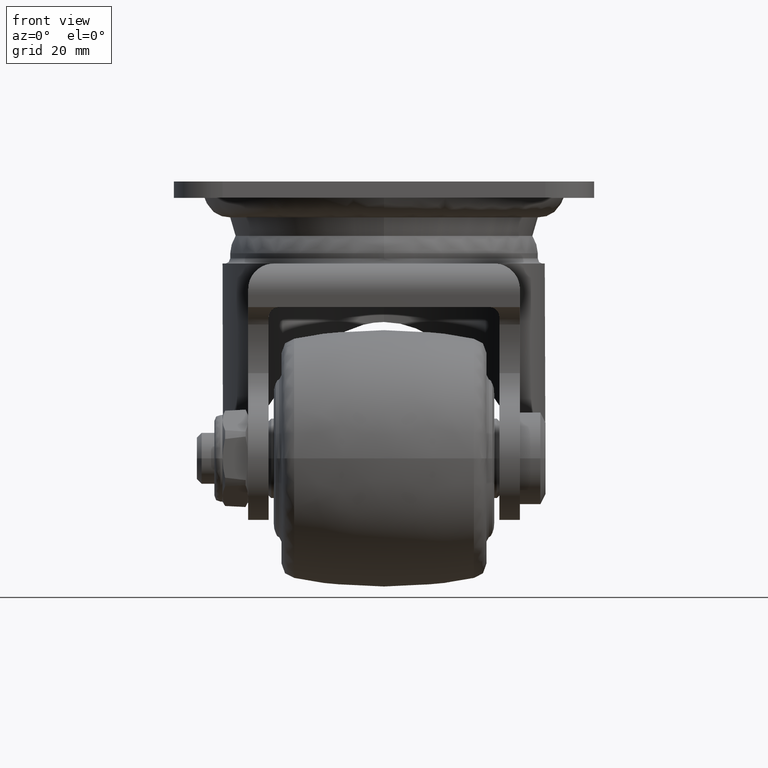
[diagram: clean part render]
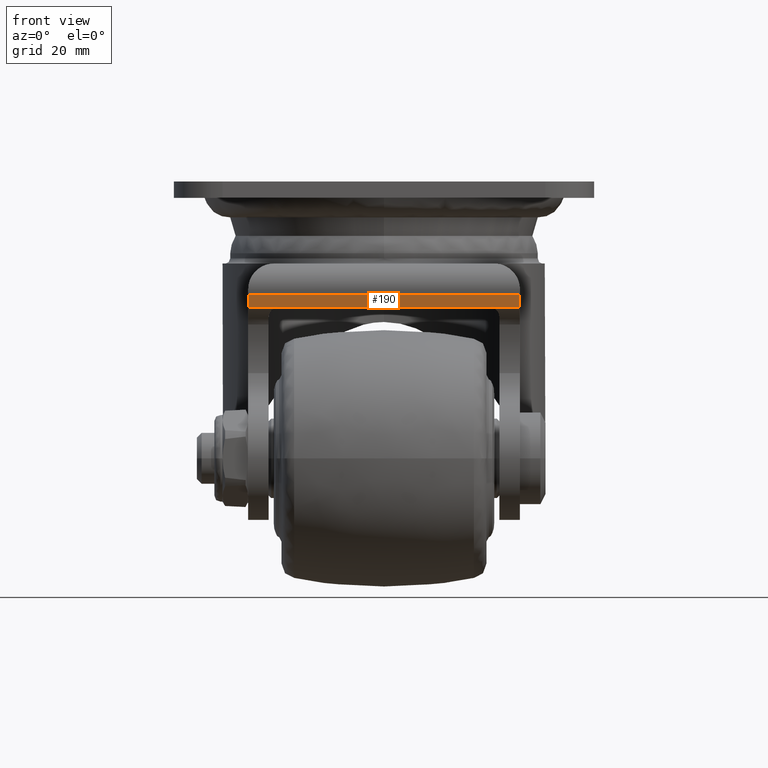
[diagram: same view with one face highlighted and labeled with its STEP entity id]
A machine part, front view. The second image highlights one B-rep face of the part: STEP entity #190.
In plain terms, the highlighted planar face has unit normal (0, -0.9741, -0.2263).
Its self-contained STEP definition (entity closure, byte-faithful):
#190=ADVANCED_FACE('',(#747),#746,.T.);
#746=PLANE('',#2407);
#747=FACE_OUTER_BOUND('',#2408,.T.);
#2404=CARTESIAN_POINT('',(-3.18000000000E+01,-2.18946961403E+01,3.79253063678E+01));
#2405=DIRECTION('',(0.00000000000E+00,-2.26308389154E-01,9.74055703232E-01));
#2406=DIRECTION('',(0.00000000000E+00,-9.74055703232E-01,-2.26308389154E-01));
#2407=AXIS2_PLACEMENT_3D('',#2404,#2405,#2406);
#2408=EDGE_LOOP('',(#4106,#4107,#4108,#4109));
#4106=ORIENTED_EDGE('',*,*,#4786,.T.);
#4107=ORIENTED_EDGE('',*,*,#4869,.F.);
#4108=ORIENTED_EDGE('',*,*,#4770,.T.);
#4109=ORIENTED_EDGE('',*,*,#4868,.T.);
#4770=EDGE_CURVE('',#5451,#5444,#5452,.T.);
#4786=EDGE_CURVE('',#5561,#5554,#5562,.T.);
#4868=EDGE_CURVE('',#5444,#5561,#6103,.T.);
#4869=EDGE_CURVE('',#5451,#5554,#6109,.T.);
#5444=VERTEX_POINT('',#8329);
#5451=VERTEX_POINT('',#8334);
#5452=LINE('',#8335,#8336);
#5554=VERTEX_POINT('',#8401);
#5561=VERTEX_POINT('',#8405);
#5562=LINE('',#8406,#8407);
#6103=LINE('',#8837,#8838);
#6109=LINE('',#8840,#8841);
#8329=CARTESIAN_POINT('',(2.65000000000E+01,-2.21315419458E+01,3.78702785162E+01));
#8334=CARTESIAN_POINT('',(2.65000000000E+01,-2.45000000000E+01,3.73200000000E+01));
#8335=CARTESIAN_POINT('',(2.65000000000E+01,-2.45000000000E+01,3.73200000000E+01));
#8336=VECTOR('',#8337,2.43154272017E+00);
#8337=DIRECTION('',(0.00000000000E+00,9.74055703232E-01,2.26308389154E-01));
#8401=CARTESIAN_POINT('',(-2.65000000000E+01,-2.45000000000E+01,3.73200000000E+01));
#8405=CARTESIAN_POINT('',(-2.65000000000E+01,-2.21315419458E+01,3.78702785162E+01));
#8406=CARTESIAN_POINT('',(-2.65000000000E+01,-2.21315419458E+01,3.78702785162E+01));
#8407=VECTOR('',#8408,2.43154272017E+00);
#8408=DIRECTION('',(0.00000000000E+00,-9.74055703232E-01,-2.26308389154E-01));
#8837=CARTESIAN_POINT('',(2.65000000000E+01,-2.21315419458E+01,3.78702785162E+01));
#8838=VECTOR('',#8839,5.30000000000E+01);
#8839=DIRECTION('',(-1.00000000000E+00,0.00000000000E+00,0.00000000000E+00));
#8840=CARTESIAN_POINT('',(2.65000000000E+01,-2.45000000000E+01,3.73200000000E+01));
#8841=VECTOR('',#8842,5.30000000000E+01);
#8842=DIRECTION('',(-1.00000000000E+00,0.00000000000E+00,0.00000000000E+00));